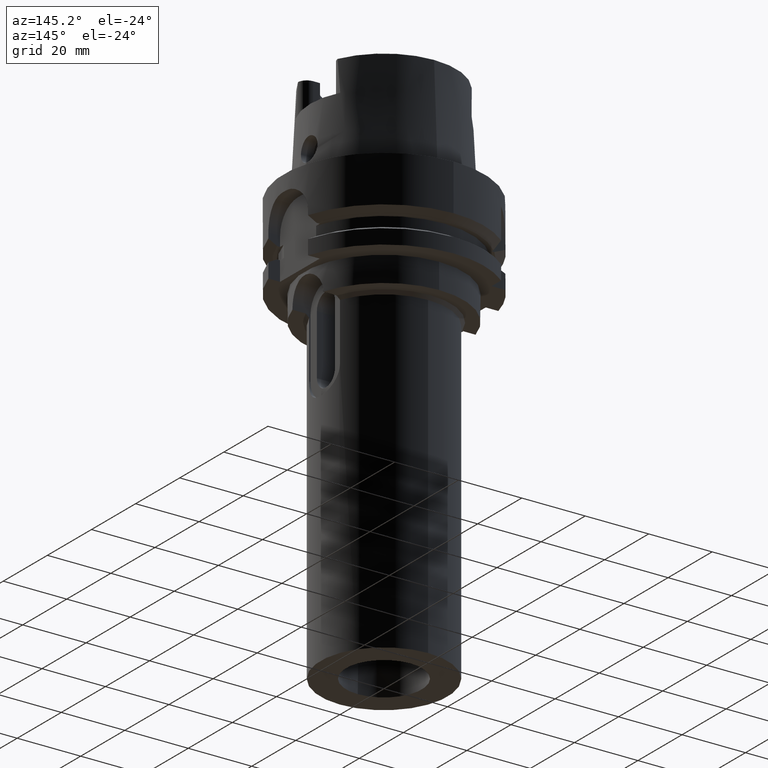
[diagram: clean part render]
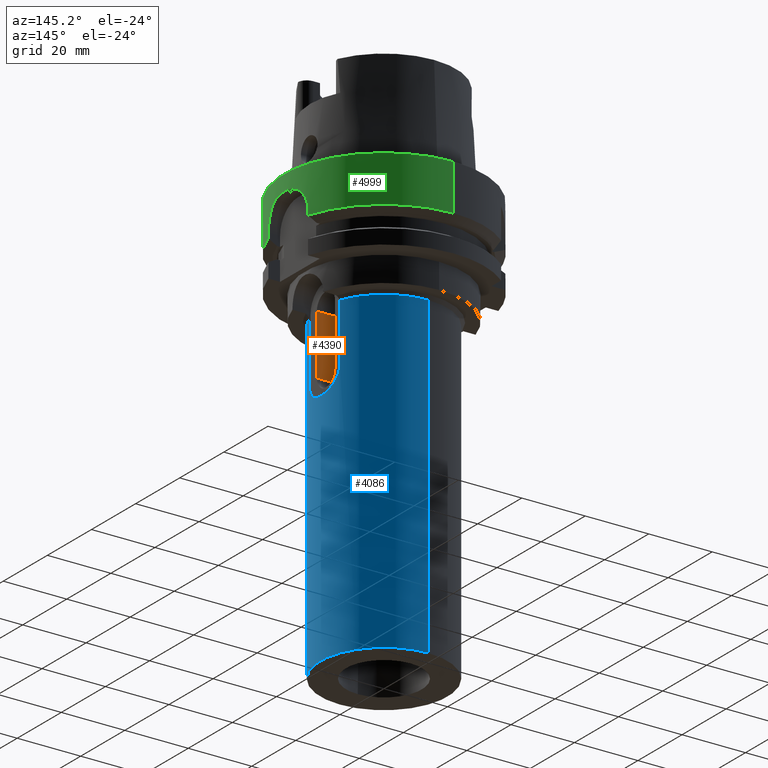
[diagram: same view with three faces highlighted in distinct colors, each labeled with its STEP entity id]
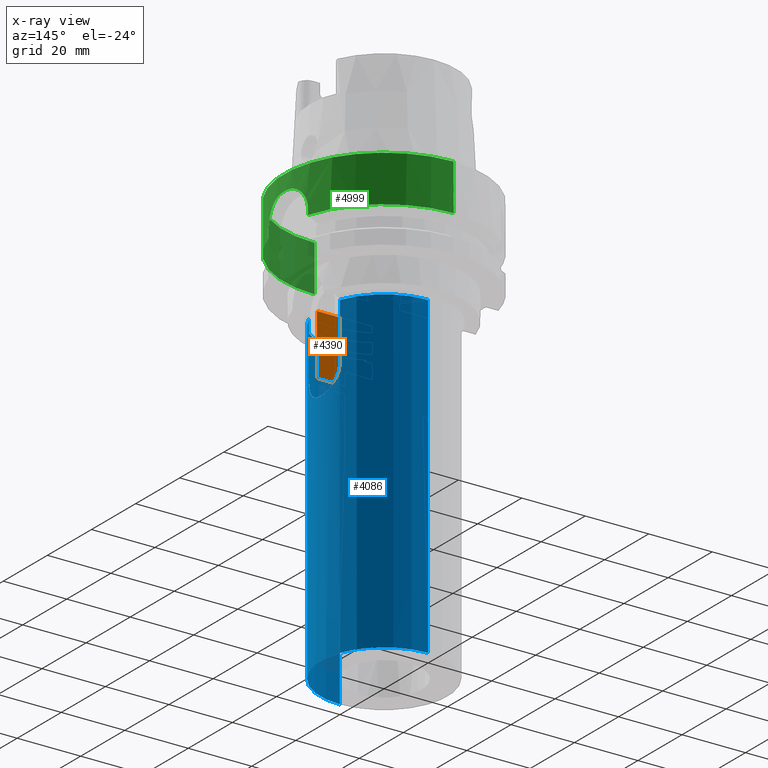
[diagram: x-ray of the same camera — body ghosted, the three highlighted faces saturated]
A machine part, auxiliary view with three faces highlighted in distinct colors.
The next image is the same camera in x-ray (body ghosted, the three faces saturated) — at least one of them is partly hidden behind the body in this view.
Their STEP definitions:

[orange] entity #4390 — the highlighted planar face has unit normal (0, -1, 0).
#864=CARTESIAN_POINT('',(9.110433579144E-1,-4.1E0,-3.4E1));
#921=DIRECTION('',(0.E0,0.E0,1.E0));
#922=VECTOR('',#921,1.5E1);
#923=CARTESIAN_POINT('',(9.110433579144E-1,-4.1E0,-4.9E1));
#924=LINE('',#923,#922);
#935=DIRECTION('',(1.E0,0.E0,0.E0));
#936=VECTOR('',#935,1.738895664209E1);
#937=CARTESIAN_POINT('',(9.110433579144E-1,-4.1E0,-3.4E1));
#938=LINE('',#937,#936);
#1550=DIRECTION('',(0.E0,0.E0,1.E0));
#1551=VECTOR('',#1550,1.9E1);
#1552=CARTESIAN_POINT('',(1.83E1,-4.1E0,-5.3E1));
#1553=LINE('',#1552,#1551);
#1557=DIRECTION('',(1.E0,0.E0,0.E0));
#1558=VECTOR('',#1557,8.483236816745E0);
#1559=CARTESIAN_POINT('',(9.110433579144E-1,-4.1E0,-4.9E1));
#1560=LINE('',#1559,#1558);
#1564=DIRECTION('',(3.774758283726E-14,0.E0,1.E0));
#1565=VECTOR('',#1564,4.E0);
#1566=CARTESIAN_POINT('',(9.394280174659E0,-4.1E0,-5.3E1));
#1567=LINE('',#1566,#1565);
#1711=DIRECTION('',(-1.E0,0.E0,0.E0));
#1712=VECTOR('',#1711,8.905719825341E0);
#1713=CARTESIAN_POINT('',(1.83E1,-4.1E0,-5.3E1));
#1714=LINE('',#1713,#1712);
#3078=VERTEX_POINT('',#864);
#3086=CARTESIAN_POINT('',(9.110433579145E-1,-4.1E0,-4.9E1));
#3087=VERTEX_POINT('',#3086);
#3092=CARTESIAN_POINT('',(1.83E1,-4.1E0,-3.4E1));
#3093=VERTEX_POINT('',#3092);
#3116=CARTESIAN_POINT('',(1.83E1,-4.1E0,-5.3E1));
#3117=VERTEX_POINT('',#3116);
#3355=CARTESIAN_POINT('',(9.394280174659E0,-4.1E0,-5.3E1));
#3356=VERTEX_POINT('',#3355);
#3360=CARTESIAN_POINT('',(9.394280174659E0,-4.1E0,-4.9E1));
#3361=VERTEX_POINT('',#3360);
#4375=CARTESIAN_POINT('',(2.5E1,-4.1E0,-3.4E1));
#4376=DIRECTION('',(0.E0,-1.E0,0.E0));
#4377=DIRECTION('',(0.E0,0.E0,-1.E0));
#4378=AXIS2_PLACEMENT_3D('',#4375,#4376,#4377);
#4379=PLANE('',#4378);
#4380=ORIENTED_EDGE('',*,*,#4017,.T.);
#4381=ORIENTED_EDGE('',*,*,#3991,.F.);
#4382=ORIENTED_EDGE('',*,*,#3974,.F.);
#4383=ORIENTED_EDGE('',*,*,#4363,.T.);
#4385=ORIENTED_EDGE('',*,*,#4384,.F.);
#4387=ORIENTED_EDGE('',*,*,#4386,.F.);
#4388=EDGE_LOOP('',(#4380,#4381,#4382,#4383,#4385,#4387));
#4389=FACE_OUTER_BOUND('',#4388,.F.);
#3974=EDGE_CURVE('',#3087,#3078,#924,.T.);
#3991=EDGE_CURVE('',#3078,#3093,#938,.T.);
#4017=EDGE_CURVE('',#3117,#3093,#1553,.T.);
#4363=EDGE_CURVE('',#3087,#3361,#1560,.T.);
#4384=EDGE_CURVE('',#3356,#3361,#1567,.T.);
#4386=EDGE_CURVE('',#3117,#3356,#1714,.T.);
#4390=ADVANCED_FACE('',(#4389),#4379,.F.);

[blue] entity #4086 — the highlighted cylindrical surface (partial cylindrical patch) has radius 20 mm, axis along (0, 0, 1).
#1069=DIRECTION('',(-5.914848406715E-9,-1.583090394931E-8,-1.E0));
#1070=VECTOR('',#1069,1.799999836896E1);
#1071=CARTESIAN_POINT('',(1.873499410167E1,-6.999999715043E0,
-3.500000163104E1));
#1072=LINE('',#1071,#1070);
#1076=CARTESIAN_POINT('',(1.873499399520E1,-6.999999999999E0,-5.3E1));
#1077=CARTESIAN_POINT('',(1.873499399520E1,-6.999999999999E0,
-5.350465196664E1));
#1078=CARTESIAN_POINT('',(1.877543307736E1,-6.892820667873E0,
-5.450100712074E1));
#1079=CARTESIAN_POINT('',(1.895274813426E1,-6.400670313251E0,
-5.598421998747E1));
#1080=CARTESIAN_POINT('',(1.922591630655E1,-5.540675942746E0,
-5.737360362480E1));
#1081=CARTESIAN_POINT('',(1.950982864926E1,-4.461316747887E0,
-5.847070893299E1));
#1082=CARTESIAN_POINT('',(1.977996748693E1,-3.079535215921E0,
-5.935609625260E1));
#1083=CARTESIAN_POINT('',(1.995729787692E1,-1.581486462650E0,
-5.987892117394E1));
#1084=CARTESIAN_POINT('',(2.002083845135E1,-1.065992011547E-2,
-6.005910252786E1));
#1085=CARTESIAN_POINT('',(1.995931792872E1,1.538725014644E0,-5.988458389582E1));
#1086=CARTESIAN_POINT('',(1.979510456410E1,2.972130010794E0,-5.940125177138E1));
#1087=CARTESIAN_POINT('',(1.953778583651E1,4.339177395943E0,-5.856766268451E1));
#1088=CARTESIAN_POINT('',(1.924961102186E1,5.461287376577E0,-5.747728258075E1));
#1089=CARTESIAN_POINT('',(1.896353200377E1,6.370319381219E0,-5.605985525208E1));
#1090=CARTESIAN_POINT('',(1.877557082462E1,6.892640733748E0,-5.451780409869E1));
#1091=CARTESIAN_POINT('',(1.873499399520E1,6.999999999999E0,-5.350848784494E1));
#1092=CARTESIAN_POINT('',(1.873499399520E1,6.999999999999E0,-5.3E1));
#1097=DIRECTION('',(-1.630651918408E-9,4.364083454649E-9,1.E0));
#1098=VECTOR('',#1097,1.800000044962E1);
#1099=CARTESIAN_POINT('',(1.873499399520E1,6.999999999999E0,-5.3E1));
#1100=LINE('',#1099,#1098);
#1104=DIRECTION('',(0.E0,0.E0,-1.E0));
#1105=VECTOR('',#1104,1.E2);
#1106=CARTESIAN_POINT('',(0.E0,2.E1,-3.5E1));
#1107=LINE('',#1106,#1105);
#1131=CARTESIAN_POINT('',(0.E0,0.E0,-3.5E1));
#1132=DIRECTION('',(0.E0,0.E0,-1.E0));
#1133=DIRECTION('',(9.367496997598E-1,-3.499999999999E-1,0.E0));
#1134=AXIS2_PLACEMENT_3D('',#1131,#1132,#1133);
#1182=DIRECTION('',(0.E0,0.E0,-1.E0));
#1183=VECTOR('',#1182,1.E2);
#1184=CARTESIAN_POINT('',(0.E0,-2.E1,-3.5E1));
#1185=LINE('',#1184,#1183);
#1207=CARTESIAN_POINT('',(0.E0,0.E0,-3.5E1));
#1208=DIRECTION('',(0.E0,0.E0,-1.E0));
#1209=DIRECTION('',(0.E0,1.E0,0.E0));
#1210=AXIS2_PLACEMENT_3D('',#1207,#1208,#1209);
#1771=CARTESIAN_POINT('',(0.E0,0.E0,-1.35E2));
#1772=DIRECTION('',(0.E0,0.E0,1.E0));
#1773=DIRECTION('',(0.E0,-1.E0,0.E0));
#1774=AXIS2_PLACEMENT_3D('',#1771,#1772,#1773);
#3129=CARTESIAN_POINT('',(1.873499399520E1,6.999999999999E0,-5.3E1));
#3130=CARTESIAN_POINT('',(1.873499396585E1,7.000000078553E0,-3.499999955038E1));
#3131=VERTEX_POINT('',#3129);
#3132=VERTEX_POINT('',#3130);
#3133=CARTESIAN_POINT('',(1.873499410167E1,-6.999999715043E0,
-3.500000163104E1));
#3134=CARTESIAN_POINT('',(1.873499399520E1,-6.999999999999E0,-5.3E1));
#3135=VERTEX_POINT('',#3133);
#3136=VERTEX_POINT('',#3134);
#3137=CARTESIAN_POINT('',(0.E0,2.E1,-3.5E1));
#3138=VERTEX_POINT('',#3137);
#3139=CARTESIAN_POINT('',(0.E0,2.E1,-1.35E2));
#3140=VERTEX_POINT('',#3139);
#3141=CARTESIAN_POINT('',(0.E0,-2.E1,-1.35E2));
#3142=VERTEX_POINT('',#3141);
#3143=CARTESIAN_POINT('',(0.E0,-2.E1,-3.5E1));
#3144=VERTEX_POINT('',#3143);
#4064=CARTESIAN_POINT('',(0.E0,0.E0,-1.4335E2));
#4065=DIRECTION('',(0.E0,0.E0,1.E0));
#4066=DIRECTION('',(0.E0,1.E0,0.E0));
#4067=AXIS2_PLACEMENT_3D('',#4064,#4065,#4066);
#4068=CYLINDRICAL_SURFACE('',#4067,2.E1);
#4070=ORIENTED_EDGE('',*,*,#4069,.T.);
#4072=ORIENTED_EDGE('',*,*,#4071,.T.);
#4073=ORIENTED_EDGE('',*,*,#4053,.T.);
#4075=ORIENTED_EDGE('',*,*,#4074,.F.);
#4077=ORIENTED_EDGE('',*,*,#4076,.T.);
#4079=ORIENTED_EDGE('',*,*,#4078,.F.);
#4081=ORIENTED_EDGE('',*,*,#4080,.F.);
#4083=ORIENTED_EDGE('',*,*,#4082,.F.);
#4084=EDGE_LOOP('',(#4070,#4072,#4073,#4075,#4077,#4079,#4081,#4083));
#4085=FACE_OUTER_BOUND('',#4084,.F.);
#1093=B_SPLINE_CURVE_WITH_KNOTS('',3,(#1076,#1077,#1078,#1079,#1080,#1081,#1082,
#1083,#1084,#1085,#1086,#1087,#1088,#1089,#1090,#1091,#1092),.UNSPECIFIED.,.F.,
.F.,(4,1,1,1,1,1,1,1,1,1,1,1,1,1,4),(0.E0,7.142857142857E-2,1.428571428571E-1,
2.142857142857E-1,2.857142857143E-1,3.571428571429E-1,4.285714285714E-1,5.E-1,
5.714285714286E-1,6.428571428571E-1,7.142857142857E-1,7.857142857143E-1,
8.571428571429E-1,9.285714285714E-1,1.E0),.UNSPECIFIED.);
#1135=CIRCLE('',#1134,2.E1);
#1211=CIRCLE('',#1210,2.E1);
#1775=CIRCLE('',#1774,2.E1);
#4053=EDGE_CURVE('',#3131,#3132,#1100,.T.);
#4069=EDGE_CURVE('',#3135,#3136,#1072,.T.);
#4071=EDGE_CURVE('',#3136,#3131,#1093,.T.);
#4074=EDGE_CURVE('',#3138,#3132,#1211,.T.);
#4076=EDGE_CURVE('',#3138,#3140,#1107,.T.);
#4078=EDGE_CURVE('',#3142,#3140,#1775,.T.);
#4080=EDGE_CURVE('',#3144,#3142,#1185,.T.);
#4082=EDGE_CURVE('',#3135,#3144,#1135,.T.);
#4086=ADVANCED_FACE('',(#4085),#4068,.T.);

[green] entity #4999 — the highlighted cylindrical surface (partial cylindrical patch) has radius 31.5 mm, axis along (0, 0, 1).
#2372=CARTESIAN_POINT('',(3.018691748979E1,9.000000692495E0,-1.462249534001E1));
#2377=CARTESIAN_POINT('',(0.E0,0.E0,-1.462250092524E1));
#2378=DIRECTION('',(0.E0,0.E0,1.E0));
#2379=DIRECTION('',(9.583148474999E-1,2.857142857143E-1,0.E0));
#2380=AXIS2_PLACEMENT_3D('',#2377,#2378,#2379);
#2407=DIRECTION('',(1.272501765064E-7,-4.268089141582E-7,9.999999999999E-1));
#2408=VECTOR('',#2407,1.622495340012E0);
#2409=CARTESIAN_POINT('',(3.018691748979E1,9.000000692495E0,-1.462249534001E1));
#2410=LINE('',#2409,#2408);
#2414=CARTESIAN_POINT('',(3.018691769625E1,9.E0,-1.3E1));
#2415=CARTESIAN_POINT('',(3.018691769625E1,9.E0,-1.241192044246E1));
#2416=CARTESIAN_POINT('',(3.022458728510E1,8.875289756343E0,-1.125892253359E1));
#2417=CARTESIAN_POINT('',(3.039357297651E1,8.287848925068E0,-9.537932355535E0));
#2418=CARTESIAN_POINT('',(3.064072627143E1,7.337171348318E0,-8.008358270973E0));
#2419=CARTESIAN_POINT('',(3.092162270031E1,6.065228345861E0,-6.720433294446E0));
#2420=CARTESIAN_POINT('',(3.118756083941E1,4.530396778446E0,-5.743154363573E0));
#2421=CARTESIAN_POINT('',(3.139304788483E1,2.789432826227E0,-5.132903354510E0));
#2422=CARTESIAN_POINT('',(3.146487709602E1,1.605939868112E0,-5.E0));
#2423=CARTESIAN_POINT('',(3.148412298286E1,1.E0,-5.E0));
#2428=CARTESIAN_POINT('',(3.148412298286E1,-1.E0,-5.E0));
#2429=CARTESIAN_POINT('',(3.146532949681E1,-1.591696426269E0,-5.E0));
#2430=CARTESIAN_POINT('',(3.139581012128E1,-2.752619676069E0,
-5.126773188747E0));
#2431=CARTESIAN_POINT('',(3.119520174941E1,-4.476607823204E0,
-5.718420889006E0));
#2432=CARTESIAN_POINT('',(3.093174465896E1,-6.014174422853E0,
-6.679583030672E0));
#2433=CARTESIAN_POINT('',(3.064996772581E1,-7.299331081684E0,
-7.959872703527E0));
#2434=CARTESIAN_POINT('',(3.039933270186E1,-8.267303794649E0,
-9.491940593770E0));
#2435=CARTESIAN_POINT('',(3.022586282427E1,-8.871126608213E0,
-1.123173377103E1));
#2436=CARTESIAN_POINT('',(3.018691769625E1,-9.E0,-1.240175542430E1));
#2437=CARTESIAN_POINT('',(3.018691769625E1,-9.E0,-1.3E1));
#2442=DIRECTION('',(2.673091159409E-8,8.965930968275E-8,-1.E0));
#2443=VECTOR('',#2442,1.622502098514E0);
#2444=CARTESIAN_POINT('',(3.018691769625E1,-9.E0,-1.3E1));
#2445=LINE('',#2444,#2443);
#2449=DIRECTION('',(0.E0,2.672583210396E-14,-1.E0));
#2450=VECTOR('',#2449,1.462250092524E1);
#2451=CARTESIAN_POINT('',(0.E0,3.15E1,1.894780628694E-13));
#2452=LINE('',#2451,#2450);
#2456=CARTESIAN_POINT('',(0.E0,0.E0,-5.E0));
#2457=DIRECTION('',(0.E0,0.E0,1.E0));
#2458=DIRECTION('',(9.994959677099E-1,-3.174603174603E-2,0.E0));
#2459=AXIS2_PLACEMENT_3D('',#2456,#2457,#2458);
#2580=DIRECTION('',(0.E0,-2.672583210396E-14,-1.E0));
#2581=VECTOR('',#2580,1.462250092524E1);
#2582=CARTESIAN_POINT('',(0.E0,-3.15E1,1.894780628694E-13));
#2583=LINE('',#2582,#2581);
#2634=CARTESIAN_POINT('',(0.E0,0.E0,3.410605131648E-13));
#2635=DIRECTION('',(0.E0,0.E0,-1.E0));
#2636=DIRECTION('',(0.E0,1.E0,0.E0));
#2637=AXIS2_PLACEMENT_3D('',#2634,#2635,#2636);
#2676=CARTESIAN_POINT('',(0.E0,0.E0,-1.462250092524E1));
#2677=DIRECTION('',(0.E0,0.E0,1.E0));
#2678=DIRECTION('',(0.E0,-1.E0,0.E0));
#2679=AXIS2_PLACEMENT_3D('',#2676,#2677,#2678);
#2684=CARTESIAN_POINT('',(3.018691773962E1,-8.999999854527E0,
-1.462250209851E1));
#3317=VERTEX_POINT('',#2684);
#3318=CARTESIAN_POINT('',(3.018691769625E1,-9.E0,-1.3E1));
#3319=VERTEX_POINT('',#3318);
#3328=CARTESIAN_POINT('',(0.E0,-3.15E1,-1.462250092524E1));
#3329=VERTEX_POINT('',#3328);
#3330=VERTEX_POINT('',#2372);
#3331=CARTESIAN_POINT('',(0.E0,3.15E1,-1.462250092524E1));
#3332=VERTEX_POINT('',#3331);
#3334=CARTESIAN_POINT('',(0.E0,3.15E1,1.894780628694E-13));
#3335=VERTEX_POINT('',#3334);
#3336=CARTESIAN_POINT('',(0.E0,-3.15E1,3.410605131648E-13));
#3337=VERTEX_POINT('',#3336);
#3340=CARTESIAN_POINT('',(3.018691769625E1,9.E0,-1.3E1));
#3341=VERTEX_POINT('',#3340);
#3342=VERTEX_POINT('',#2423);
#3343=CARTESIAN_POINT('',(3.148412298286E1,-1.E0,-5.E0));
#3344=VERTEX_POINT('',#3343);
#4975=CARTESIAN_POINT('',(0.E0,0.E0,-1.4335E2));
#4976=DIRECTION('',(0.E0,0.E0,1.E0));
#4977=DIRECTION('',(0.E0,1.E0,0.E0));
#4978=AXIS2_PLACEMENT_3D('',#4975,#4976,#4977);
#4979=CYLINDRICAL_SURFACE('',#4978,3.15E1);
#4980=ORIENTED_EDGE('',*,*,#4955,.T.);
#4981=ORIENTED_EDGE('',*,*,#4966,.T.);
#4983=ORIENTED_EDGE('',*,*,#4982,.F.);
#4985=ORIENTED_EDGE('',*,*,#4984,.T.);
#4987=ORIENTED_EDGE('',*,*,#4986,.T.);
#4989=ORIENTED_EDGE('',*,*,#4988,.F.);
#4991=ORIENTED_EDGE('',*,*,#4990,.F.);
#4993=ORIENTED_EDGE('',*,*,#4992,.F.);
#4995=ORIENTED_EDGE('',*,*,#4994,.T.);
#4996=ORIENTED_EDGE('',*,*,#4939,.F.);
#4997=EDGE_LOOP('',(#4980,#4981,#4983,#4985,#4987,#4989,#4991,#4993,#4995,
#4996));
#4998=FACE_OUTER_BOUND('',#4997,.F.);
#2381=CIRCLE('',#2380,3.15E1);
#2424=B_SPLINE_CURVE_WITH_KNOTS('',3,(#2414,#2415,#2416,#2417,#2418,#2419,#2420,
#2421,#2422,#2423),.UNSPECIFIED.,.F.,.F.,(4,1,1,1,1,1,1,4),(0.E0,
1.428571428571E-1,2.857142857143E-1,4.285714285714E-1,5.714285714286E-1,
7.142857142857E-1,8.571428571429E-1,1.E0),.UNSPECIFIED.);
#2438=B_SPLINE_CURVE_WITH_KNOTS('',3,(#2428,#2429,#2430,#2431,#2432,#2433,#2434,
#2435,#2436,#2437),.UNSPECIFIED.,.F.,.F.,(4,1,1,1,1,1,1,4),(0.E0,
1.428571428571E-1,2.857142857143E-1,4.285714285714E-1,5.714285714286E-1,
7.142857142857E-1,8.571428571429E-1,1.E0),.UNSPECIFIED.);
#2460=CIRCLE('',#2459,3.15E1);
#2638=CIRCLE('',#2637,3.15E1);
#2680=CIRCLE('',#2679,3.15E1);
#4939=EDGE_CURVE('',#3330,#3332,#2381,.T.);
#4955=EDGE_CURVE('',#3330,#3341,#2410,.T.);
#4966=EDGE_CURVE('',#3341,#3342,#2424,.T.);
#4982=EDGE_CURVE('',#3344,#3342,#2460,.T.);
#4984=EDGE_CURVE('',#3344,#3319,#2438,.T.);
#4986=EDGE_CURVE('',#3319,#3317,#2445,.T.);
#4988=EDGE_CURVE('',#3329,#3317,#2680,.T.);
#4990=EDGE_CURVE('',#3337,#3329,#2583,.T.);
#4992=EDGE_CURVE('',#3335,#3337,#2638,.T.);
#4994=EDGE_CURVE('',#3335,#3332,#2452,.T.);
#4999=ADVANCED_FACE('',(#4998),#4979,.T.);